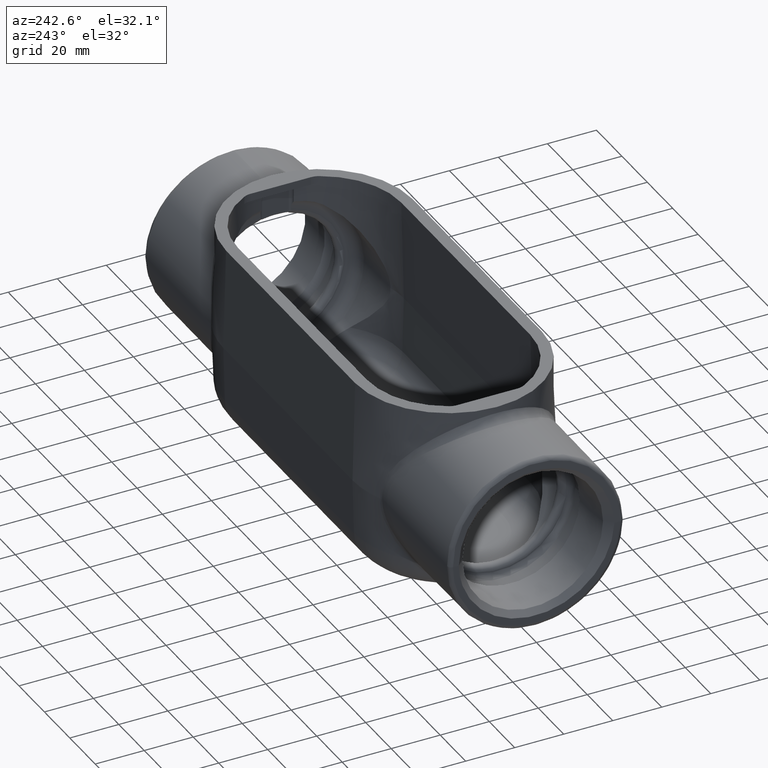
[diagram: clean part render]
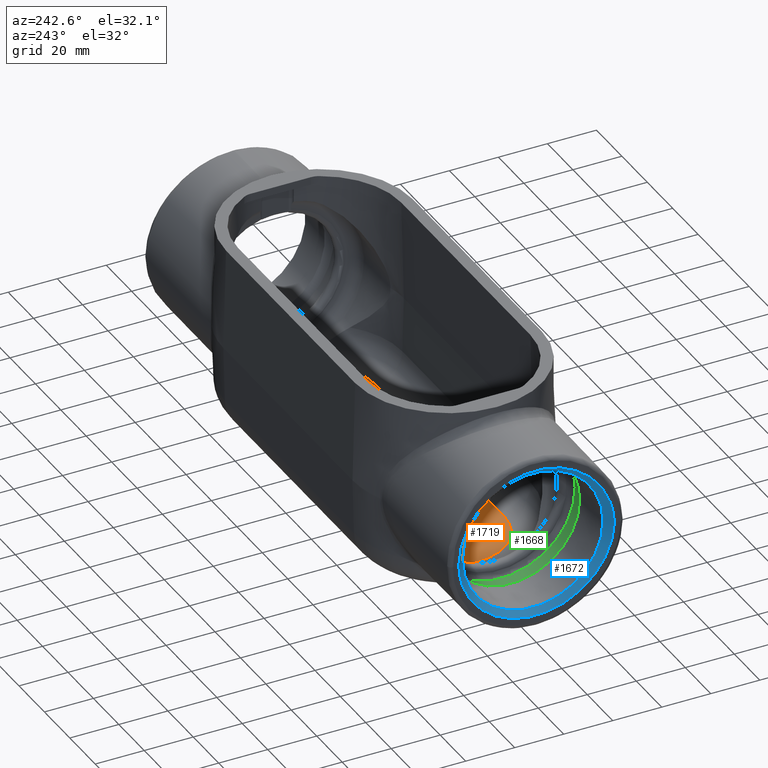
[diagram: same view with three faces highlighted in distinct colors, each labeled with its STEP entity id]
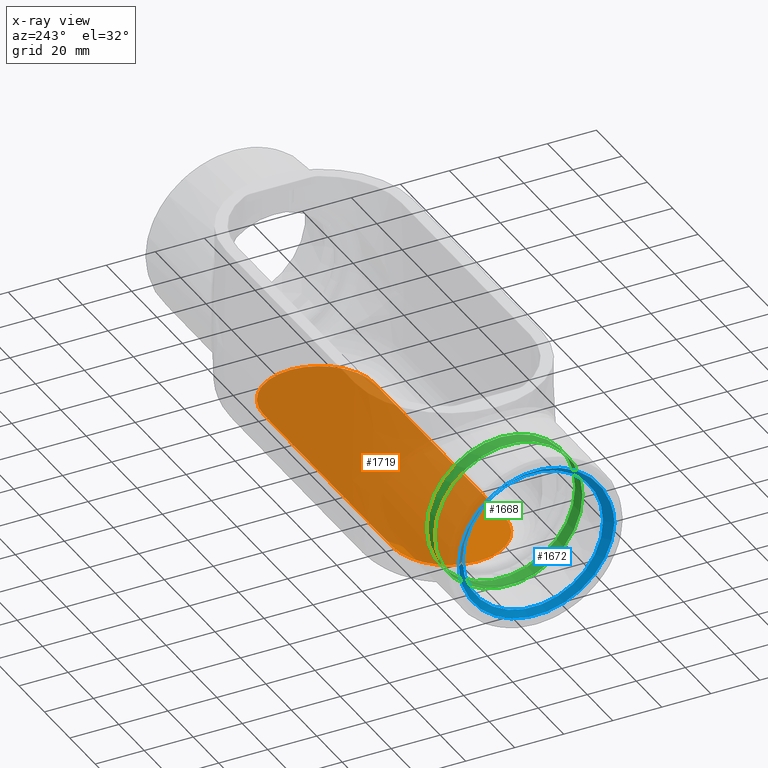
[diagram: x-ray of the same camera — body ghosted, the three highlighted faces saturated]
A machine part, auxiliary view with three faces highlighted in distinct colors.
The next image is the same camera in x-ray (body ghosted, the three faces saturated) — at least one of them is partly hidden behind the body in this view.
Their STEP definitions:

[orange] entity #1719 — the highlighted planar face has unit normal (0, 0, 1).
#125=PLANE('',#1939);
#213=FACE_OUTER_BOUND('',#316,.T.);
#316=EDGE_LOOP('',(#1492,#1493,#1494,#1495,#1496,#1497));
#421=LINE('',#5381,#501);
#422=LINE('',#5382,#502);
#501=VECTOR('',#2387,4.);
#502=VECTOR('',#2388,4.);
#636=CIRCLE('',#1919,0.894425195870098);
#637=CIRCLE('',#1921,0.894425195870098);
#642=CIRCLE('',#1931,0.894425195870098);
#643=CIRCLE('',#1933,0.894425195870098);
#758=VERTEX_POINT('',#4878);
#779=VERTEX_POINT('',#5033);
#813=VERTEX_POINT('',#5349);
#814=VERTEX_POINT('',#5353);
#817=VERTEX_POINT('',#5367);
#818=VERTEX_POINT('',#5371);
#1044=EDGE_CURVE('',#813,#779,#636,.F.);
#1045=EDGE_CURVE('',#779,#814,#637,.F.);
#1053=EDGE_CURVE('',#817,#758,#642,.F.);
#1054=EDGE_CURVE('',#758,#818,#643,.F.);
#1059=EDGE_CURVE('',#818,#813,#421,.T.);
#1060=EDGE_CURVE('',#814,#817,#422,.T.);
#1492=ORIENTED_EDGE('',*,*,#1045,.F.);
#1493=ORIENTED_EDGE('',*,*,#1044,.F.);
#1494=ORIENTED_EDGE('',*,*,#1059,.F.);
#1495=ORIENTED_EDGE('',*,*,#1054,.F.);
#1496=ORIENTED_EDGE('',*,*,#1053,.F.);
#1497=ORIENTED_EDGE('',*,*,#1060,.F.);
#1719=ADVANCED_FACE('',(#213),#125,.T.);
#1919=AXIS2_PLACEMENT_3D('',#5351,#2341,#2342);
#1921=AXIS2_PLACEMENT_3D('',#5354,#2345,#2346);
#1931=AXIS2_PLACEMENT_3D('',#5369,#2367,#2368);
#1933=AXIS2_PLACEMENT_3D('',#5372,#2371,#2372);
#1939=AXIS2_PLACEMENT_3D('',#5380,#2385,#2386);
#2341=DIRECTION('center_axis',(0.,0.,1.));
#2342=DIRECTION('ref_axis',(1.,0.,0.));
#2345=DIRECTION('center_axis',(0.,0.,1.));
#2346=DIRECTION('ref_axis',(1.,0.,0.));
#2367=DIRECTION('center_axis',(0.,0.,1.));
#2368=DIRECTION('ref_axis',(1.,0.,0.));
#2371=DIRECTION('center_axis',(0.,0.,1.));
#2372=DIRECTION('ref_axis',(1.,0.,0.));
#2385=DIRECTION('center_axis',(0.,0.,1.));
#2386=DIRECTION('ref_axis',(1.,0.,0.));
#2387=DIRECTION('',(1.,0.,0.));
#2388=DIRECTION('',(-1.,0.,0.));
#4878=CARTESIAN_POINT('',(-2.8944251958701,4.16526553815866E-15,-1.3125));
#5033=CARTESIAN_POINT('',(2.8944251958701,2.27472040675658E-32,-1.3125));
#5349=CARTESIAN_POINT('',(2.,0.894425195870098,-1.3125));
#5351=CARTESIAN_POINT('Origin',(2.,0.,-1.3125));
#5353=CARTESIAN_POINT('',(2.,-0.894425195870098,-1.3125));
#5354=CARTESIAN_POINT('Origin',(2.,0.,-1.3125));
#5367=CARTESIAN_POINT('',(-2.,-0.894425195870098,-1.3125));
#5369=CARTESIAN_POINT('Origin',(-2.,0.,-1.3125));
#5371=CARTESIAN_POINT('',(-2.,0.894425195870098,-1.3125));
#5372=CARTESIAN_POINT('Origin',(-2.,0.,-1.3125));
#5380=CARTESIAN_POINT('Origin',(2.,0.,-1.3125));
#5381=CARTESIAN_POINT('',(-2.,0.894425195870098,-1.3125));
#5382=CARTESIAN_POINT('',(2.,-0.894425195870098,-1.3125));

[blue] entity #1672 — the highlighted conical surface has half-angle 45 deg.
#71=ELLIPSE('',#1794,1.25128650088097,1.25042878458186);
#82=ELLIPSE('',#1843,1.25128650088097,1.25042878458186);
#166=FACE_OUTER_BOUND('',#268,.T.);
#268=EDGE_LOOP('',(#1252,#1253,#1254,#1255,#1256));
#378=LINE('',#4857,#458);
#458=VECTOR('',#2150,1.25);
#596=CIRCLE('',#1823,1.129);
#704=VERTEX_POINT('',#2699);
#707=VERTEX_POINT('',#2704);
#744=VERTEX_POINT('',#4779);
#877=EDGE_CURVE('',#704,#707,#71,.F.);
#928=EDGE_CURVE('',#744,#744,#596,.T.);
#946=EDGE_CURVE('',#744,#707,#378,.T.);
#947=EDGE_CURVE('',#707,#704,#82,.F.);
#1252=ORIENTED_EDGE('',*,*,#928,.T.);
#1253=ORIENTED_EDGE('',*,*,#946,.T.);
#1254=ORIENTED_EDGE('',*,*,#947,.T.);
#1255=ORIENTED_EDGE('',*,*,#877,.T.);
#1256=ORIENTED_EDGE('',*,*,#946,.F.);
#1637=CONICAL_SURFACE('',#1842,1.25,0.785398163397452);
#1672=ADVANCED_FACE('',(#166),#1637,.F.);
#1794=AXIS2_PLACEMENT_3D('',#2706,#2033,#2034);
#1823=AXIS2_PLACEMENT_3D('',#4781,#2108,#2109);
#1842=AXIS2_PLACEMENT_3D('',#4856,#2148,#2149);
#1843=AXIS2_PLACEMENT_3D('',#4858,#2151,#2152);
#2033=DIRECTION('center_axis',(0.999657324975557,0.,-0.0261769483078732));
#2034=DIRECTION('ref_axis',(-0.0261769483078731,5.49745075481854E-14,-0.999657324975557));
#2108=DIRECTION('center_axis',(1.,-1.43906484233963E-15,0.));
#2109=DIRECTION('ref_axis',(1.43906484233963E-15,1.,0.));
#2148=DIRECTION('center_axis',(-1.,1.43906484233963E-15,0.));
#2149=DIRECTION('ref_axis',(-1.43906484233963E-15,-1.,0.));
#2150=DIRECTION('',(-0.707106781186544,0.707106781186551,-8.65956056235497E-17));
#2151=DIRECTION('center_axis',(0.999657324975557,0.,0.0261769483078732));
#2152=DIRECTION('ref_axis',(-0.0261769483078731,5.49745075481854E-14,0.999657324975557));
#2699=CARTESIAN_POINT('',(-4.73005212254993,-1.24999999999999,-6.37815285707289E-14));
#2704=CARTESIAN_POINT('',(-4.73005212254993,1.25000000000001,7.360764432294E-14));
#2706=CARTESIAN_POINT('Origin',(-4.73090983879863,8.60815138351651E-15,
-0.032754862051901));
#4779=CARTESIAN_POINT('',(-4.60905212254993,1.12900000000001,0.));
#4781=CARTESIAN_POINT('Origin',(-4.60905212254993,6.63272486607245E-15,
0.));
#4856=CARTESIAN_POINT('Origin',(-4.73005212254993,6.80685171199554E-15,
0.));
#4857=CARTESIAN_POINT('',(-4.73005212254993,1.25000000000001,-1.53080849893419E-16));
#4858=CARTESIAN_POINT('Origin',(-4.73090983879863,8.60815138351651E-15,
0.032754862051901));

[green] entity #1668 — the highlighted cylindrical surface (bore or boss wall) has radius 30.2387 mm, axis along (1, -0, 0).
#47=CYLINDRICAL_SURFACE('',#1827,1.1905);
#162=FACE_OUTER_BOUND('',#263,.T.);
#263=EDGE_LOOP('',(#1225,#1226,#1227,#1228,#1229,#1230,#1231));
#377=LINE('',#4790,#457);
#457=VECTOR('',#2119,1.1905);
#597=CIRCLE('',#1825,1.1905);
#598=CIRCLE('',#1826,1.1905);
#599=CIRCLE('',#1828,1.1905);
#600=CIRCLE('',#1829,1.1905);
#601=CIRCLE('',#1830,1.1905);
#745=VERTEX_POINT('',#4783);
#746=VERTEX_POINT('',#4785);
#747=VERTEX_POINT('',#4789);
#748=VERTEX_POINT('',#4791);
#749=VERTEX_POINT('',#4793);
#930=EDGE_CURVE('',#745,#746,#597,.T.);
#931=EDGE_CURVE('',#746,#745,#598,.T.);
#932=EDGE_CURVE('',#745,#747,#377,.T.);
#933=EDGE_CURVE('',#747,#748,#599,.T.);
#934=EDGE_CURVE('',#748,#749,#600,.T.);
#935=EDGE_CURVE('',#749,#747,#601,.T.);
#1225=ORIENTED_EDGE('',*,*,#931,.F.);
#1226=ORIENTED_EDGE('',*,*,#930,.F.);
#1227=ORIENTED_EDGE('',*,*,#932,.T.);
#1228=ORIENTED_EDGE('',*,*,#933,.T.);
#1229=ORIENTED_EDGE('',*,*,#934,.T.);
#1230=ORIENTED_EDGE('',*,*,#935,.T.);
#1231=ORIENTED_EDGE('',*,*,#932,.F.);
#1668=ADVANCED_FACE('',(#162),#47,.F.);
#1825=AXIS2_PLACEMENT_3D('',#4786,#2113,#2114);
#1826=AXIS2_PLACEMENT_3D('',#4787,#2115,#2116);
#1827=AXIS2_PLACEMENT_3D('',#4788,#2117,#2118);
#1828=AXIS2_PLACEMENT_3D('',#4792,#2120,#2121);
#1829=AXIS2_PLACEMENT_3D('',#4794,#2122,#2123);
#1830=AXIS2_PLACEMENT_3D('',#4795,#2124,#2125);
#2113=DIRECTION('center_axis',(1.,-1.43906484233963E-15,0.));
#2114=DIRECTION('ref_axis',(1.43906484233963E-15,1.,0.));
#2115=DIRECTION('center_axis',(1.,-1.43906484233963E-15,0.));
#2116=DIRECTION('ref_axis',(1.43906484233963E-15,1.,0.));
#2117=DIRECTION('center_axis',(1.,-1.43906484233963E-15,0.));
#2118=DIRECTION('ref_axis',(1.43906484233963E-15,1.,0.));
#2119=DIRECTION('',(1.,-1.43906484233963E-15,0.));
#2120=DIRECTION('center_axis',(1.,-1.43906484233963E-15,0.));
#2121=DIRECTION('ref_axis',(1.43906484233963E-15,1.,0.));
#2122=DIRECTION('center_axis',(1.,-1.43906484233963E-15,0.));
#2123=DIRECTION('ref_axis',(1.43906484233963E-15,1.,0.));
#2124=DIRECTION('center_axis',(1.,-1.43906484233963E-15,0.));
#2125=DIRECTION('ref_axis',(1.43906484233963E-15,1.,0.));
#4783=CARTESIAN_POINT('',(-3.85355212254993,-1.19049999999999,-1.45794201438492E-16));
#4785=CARTESIAN_POINT('',(-3.85355212254993,1.19050000000001,0.));
#4786=CARTESIAN_POINT('Origin',(-3.85355212254993,5.54551137768486E-15,
0.));
#4787=CARTESIAN_POINT('Origin',(-3.85355212254993,5.54551137768486E-15,
0.));
#4788=CARTESIAN_POINT('Origin',(0.,0.,0.));
#4789=CARTESIAN_POINT('',(-3.62705212254993,-1.19049999999999,-1.45794201438492E-16));
#4790=CARTESIAN_POINT('',(-1.71320669480533E-15,-1.1905,-1.45794201438492E-16));
#4791=CARTESIAN_POINT('',(-3.62705212254993,1.1905,0.));
#4792=CARTESIAN_POINT('Origin',(-3.62705212254993,5.21956319089493E-15,
0.));
#4793=CARTESIAN_POINT('',(-3.62705212254993,5.07376898945644E-15,1.1905));
#4794=CARTESIAN_POINT('Origin',(-3.62705212254993,5.21956319089493E-15,
0.));
#4795=CARTESIAN_POINT('Origin',(-3.62705212254993,5.21956319089493E-15,
0.));